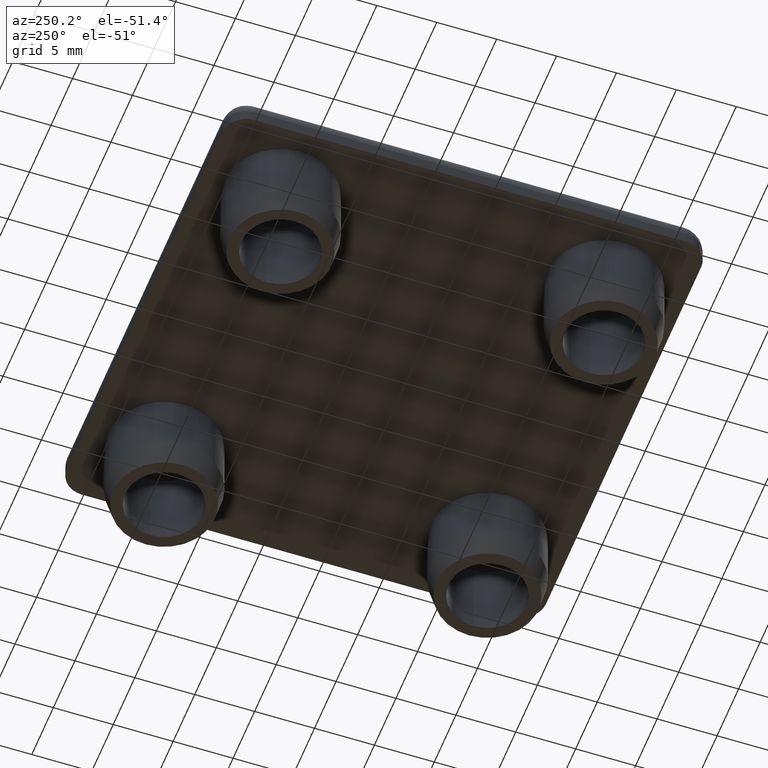
[diagram: clean part render]
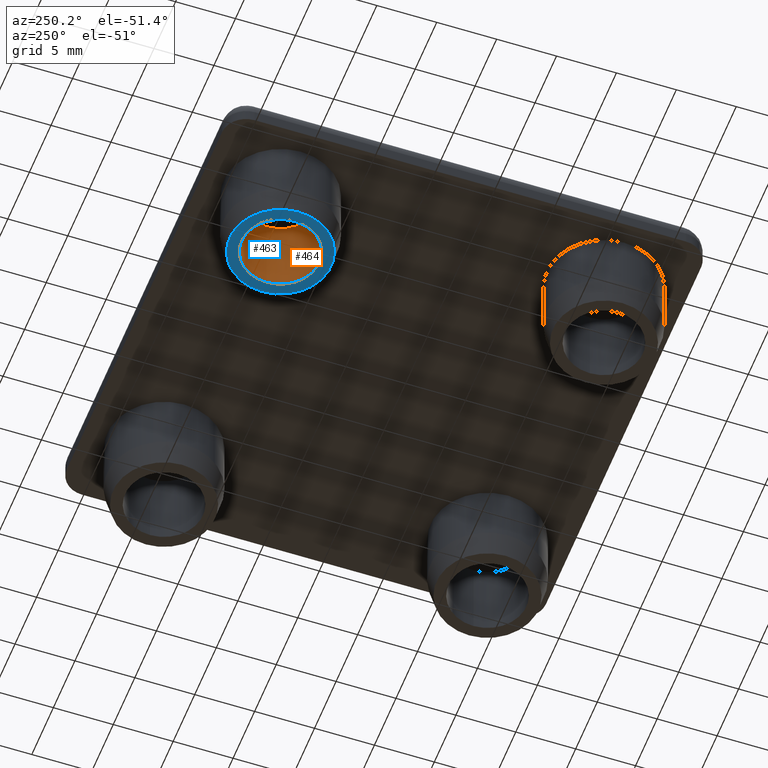
[diagram: same view with the hole feature highlighted: cylindrical wall and planar end face, labeled with their STEP entity ids]
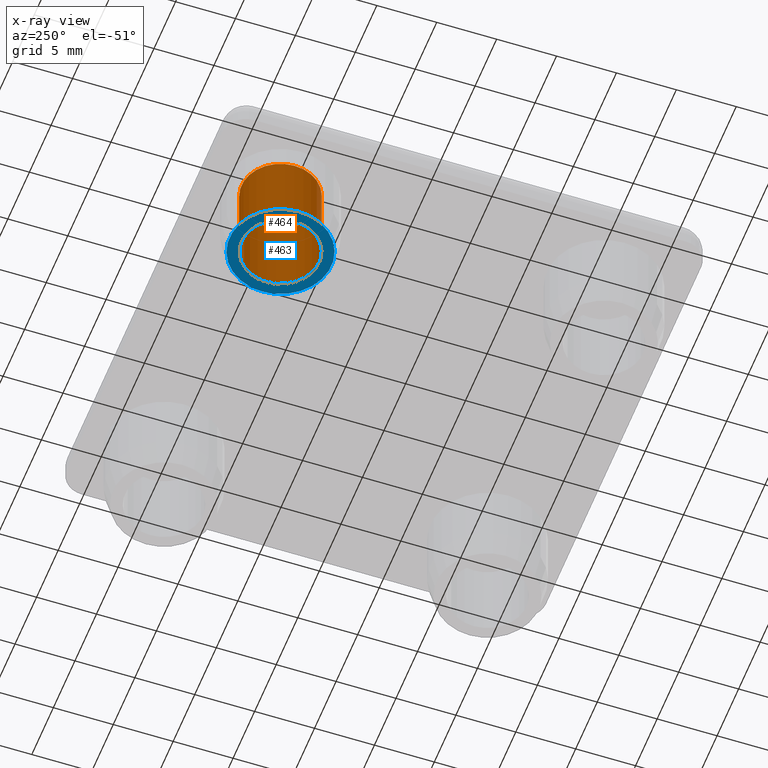
[diagram: x-ray of the same camera — body ghosted, the hole faces saturated]
A machine part, auxiliary view. The highlighted faces form one hole feature of diameter 6.5 mm: the cylindrical wall (entity #464, orange) and its adjacent planar end face (entity #463, blue) — they share a circular edge in the B-rep.
The next image is the same camera in x-ray (body ghosted, the hole faces saturated) — the bore reads through the body.
Wall:
#78=CYLINDRICAL_SURFACE('',#518,3.25);
#100=FACE_BOUND('',#170,.T.);
#120=FACE_OUTER_BOUND('',#169,.T.);
#169=EDGE_LOOP('',(#359));
#170=EDGE_LOOP('',(#360));
#218=CIRCLE('',#517,3.25);
#219=CIRCLE('',#519,3.25);
#254=VERTEX_POINT('',#775);
#255=VERTEX_POINT('',#778);
#294=EDGE_CURVE('',#254,#254,#218,.T.);
#295=EDGE_CURVE('',#255,#255,#219,.T.);
#359=ORIENTED_EDGE('',*,*,#294,.F.);
#360=ORIENTED_EDGE('',*,*,#295,.F.);
#464=ADVANCED_FACE('',(#120,#100),#78,.F.);
#517=AXIS2_PLACEMENT_3D('',#776,#617,#618);
#518=AXIS2_PLACEMENT_3D('',#777,#619,#620);
#519=AXIS2_PLACEMENT_3D('',#779,#621,#622);
#617=DIRECTION('center_axis',(0.,0.,1.));
#618=DIRECTION('ref_axis',(-1.,0.,0.));
#619=DIRECTION('center_axis',(0.,0.,1.));
#620=DIRECTION('ref_axis',(-1.,0.,0.));
#621=DIRECTION('center_axis',(0.,0.,-1.));
#622=DIRECTION('ref_axis',(-1.,0.,0.));
#775=CARTESIAN_POINT('',(-10.25,13.5,-7.));
#776=CARTESIAN_POINT('Origin',(-13.5,13.5,-7.));
#777=CARTESIAN_POINT('Origin',(-13.5,13.5,-7.));
#778=CARTESIAN_POINT('',(-10.25,13.5,0.));
#779=CARTESIAN_POINT('Origin',(-13.5,13.5,0.));
End face:
#61=PLANE('',#516);
#99=FACE_BOUND('',#168,.T.);
#119=FACE_OUTER_BOUND('',#167,.T.);
#167=EDGE_LOOP('',(#357));
#168=EDGE_LOOP('',(#358));
#216=CIRCLE('',#513,4.25);
#218=CIRCLE('',#517,3.25);
#252=VERTEX_POINT('',#769);
#254=VERTEX_POINT('',#775);
#292=EDGE_CURVE('',#252,#252,#216,.T.);
#294=EDGE_CURVE('',#254,#254,#218,.T.);
#357=ORIENTED_EDGE('',*,*,#292,.F.);
#358=ORIENTED_EDGE('',*,*,#294,.T.);
#463=ADVANCED_FACE('',(#119,#99),#61,.F.);
#513=AXIS2_PLACEMENT_3D('',#770,#609,#610);
#516=AXIS2_PLACEMENT_3D('',#774,#615,#616);
#517=AXIS2_PLACEMENT_3D('',#776,#617,#618);
#609=DIRECTION('center_axis',(0.,0.,1.));
#610=DIRECTION('ref_axis',(-1.,0.,0.));
#615=DIRECTION('center_axis',(0.,0.,1.));
#616=DIRECTION('ref_axis',(1.,0.,0.));
#617=DIRECTION('center_axis',(0.,0.,1.));
#618=DIRECTION('ref_axis',(-1.,0.,0.));
#769=CARTESIAN_POINT('',(-9.25,13.5,-7.));
#770=CARTESIAN_POINT('Origin',(-13.5,13.5,-7.));
#774=CARTESIAN_POINT('Origin',(-13.5,13.5,-7.));
#775=CARTESIAN_POINT('',(-10.25,13.5,-7.));
#776=CARTESIAN_POINT('Origin',(-13.5,13.5,-7.));